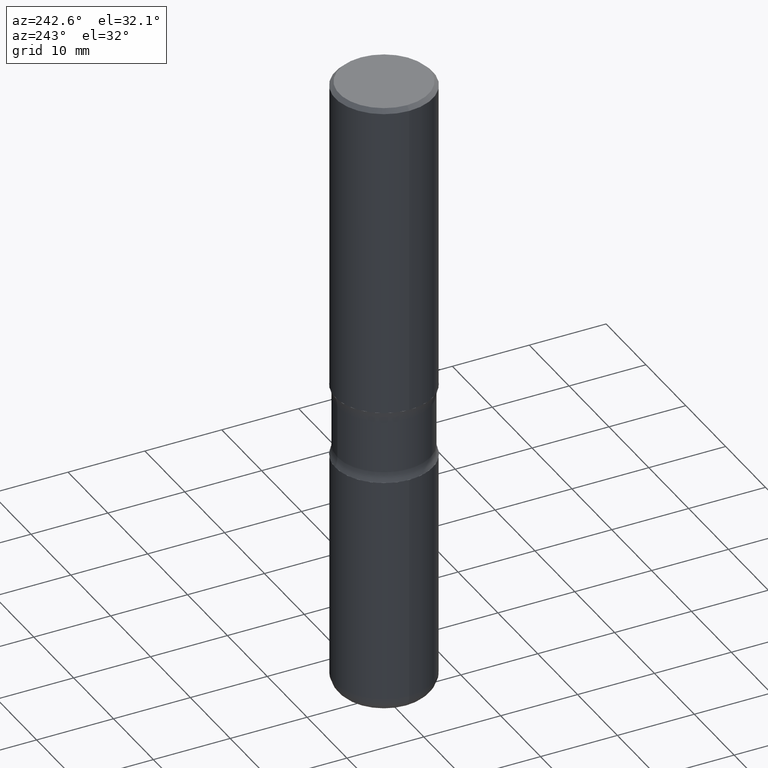
[diagram: clean part render]
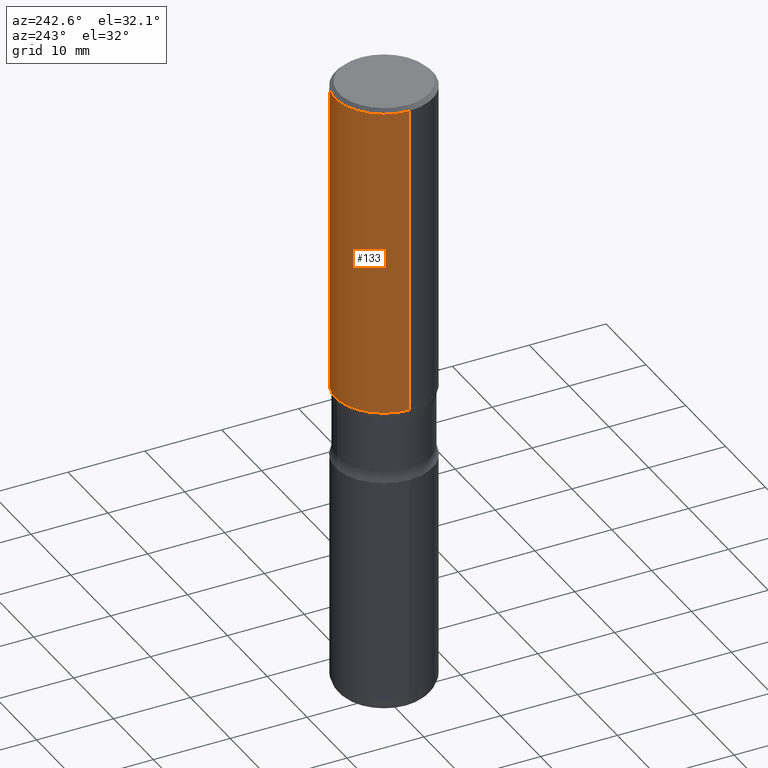
[diagram: same view with one face highlighted and labeled with its STEP entity id]
A machine part, auxiliary view. The second image highlights one B-rep face of the part: STEP entity #133.
In plain terms, the highlighted cylindrical surface (partial cylindrical patch) has radius 6.35 mm, axis along (-0, 0, 1).
Its self-contained STEP definition (entity closure, byte-faithful):
#7 = LINE ( 'NONE', #327, #521 ) ;
#46 = CARTESIAN_POINT ( 'NONE',  ( 0.000000000000000000, 0.000000000000000000, 0.000000000000000000 ) ) ;
#51 = DIRECTION ( 'NONE',  ( 1.000000000000000000, -6.982962677686265922E-15, 4.876176775795935232E-29 ) ) ;
#74 = CARTESIAN_POINT ( 'NONE',  ( 0.2500000000000005551, -7.419397845041682046E-15, -1.624999999999999778 ) ) ;
#86 = CARTESIAN_POINT ( 'NONE',  ( 3.973886810050846409E-29, -5.673657175620110635E-15, -1.624999999999999778 ) ) ;
#119 = AXIS2_PLACEMENT_3D ( 'NONE', #86, #341, #420 ) ;
#121 = EDGE_LOOP ( 'NONE', ( #452, #351, #424, #162 ) ) ;
#133 = ADVANCED_FACE ( 'NONE', ( #183 ), #278, .T. ) ;
#140 = VECTOR ( 'NONE', #407, 39.37007874015748143 ) ;
#162 = ORIENTED_EDGE ( 'NONE', *, *, #238, .F. ) ;
#175 = CARTESIAN_POINT ( 'NONE',  ( 0.2500000000000004996, -1.745740669421570030E-15, 1.219044193948986190E-29 ) ) ;
#183 = FACE_OUTER_BOUND ( 'NONE', #121, .T. ) ;
#237 = DIRECTION ( 'NONE',  ( -2.445468806185136597E-29, 3.491481338843145583E-15, 1.000000000000000000 ) ) ;
#238 = EDGE_CURVE ( 'NONE', #515, #441, #244, .T. ) ;
#244 = LINE ( 'NONE', #175, #140 ) ;
#278 = CYLINDRICAL_SURFACE ( 'NONE', #446, 0.2500000000000004996 ) ;
#288 = DIRECTION ( 'NONE',  ( -2.445468806185136597E-29, 3.491481338843145583E-15, 1.000000000000000000 ) ) ;
#298 = EDGE_CURVE ( 'NONE', #523, #309, #7, .T. ) ;
#304 = EDGE_CURVE ( 'NONE', #441, #309, #465, .T. ) ;
#309 = VERTEX_POINT ( 'NONE', #335 ) ;
#327 = CARTESIAN_POINT ( 'NONE',  ( -0.2500000000000004996, 1.776356839400254015E-15, -1.229733772563728688E-29 ) ) ;
#335 = CARTESIAN_POINT ( 'NONE',  ( -0.2500000000000003331, 1.675911042644705746E-15, -0.02000000000000013572 ) ) ;
#341 = DIRECTION ( 'NONE',  ( -2.445468806185136597E-29, 3.491481338843145583E-15, 1.000000000000000000 ) ) ;
#351 = ORIENTED_EDGE ( 'NONE', *, *, #298, .T. ) ;
#352 = AXIS2_PLACEMENT_3D ( 'NONE', #524, #288, #546 ) ;
#382 = CARTESIAN_POINT ( 'NONE',  ( -0.2500000000000005551, -1.095386561798230783E-15, -1.624999999999999778 ) ) ;
#393 = CIRCLE ( 'NONE', #119, 0.2500000000000005551 ) ;
#407 = DIRECTION ( 'NONE',  ( -2.445468806185136877E-29, 3.491481338843145188E-15, 1.000000000000000000 ) ) ;
#420 = DIRECTION ( 'NONE',  ( 1.000000000000000000, -6.982962677686266711E-15, 0.000000000000000000 ) ) ;
#424 = ORIENTED_EDGE ( 'NONE', *, *, #304, .F. ) ;
#441 = VERTEX_POINT ( 'NONE', #550 ) ;
#446 = AXIS2_PLACEMENT_3D ( 'NONE', #46, #237, #51 ) ;
#452 = ORIENTED_EDGE ( 'NONE', *, *, #549, .T. ) ;
#465 = CIRCLE ( 'NONE', #352, 0.2500000000000003331 ) ;
#491 = DIRECTION ( 'NONE',  ( -2.445468806185136877E-29, 3.491481338843145188E-15, 1.000000000000000000 ) ) ;
#515 = VERTEX_POINT ( 'NONE', #74 ) ;
#521 = VECTOR ( 'NONE', #491, 39.37007874015748143 ) ;
#523 = VERTEX_POINT ( 'NONE', #382 ) ;
#524 = CARTESIAN_POINT ( 'NONE',  ( 4.890937612370306439E-31, -6.982962677686338448E-17, -0.02000000000000013572 ) ) ;
#546 = DIRECTION ( 'NONE',  ( 1.000000000000000000, -6.982962677686266711E-15, 0.000000000000000000 ) ) ;
#549 = EDGE_CURVE ( 'NONE', #515, #523, #393, .T. ) ;
#550 = CARTESIAN_POINT ( 'NONE',  ( 0.2500000000000003331, -1.784954126219748555E-15, -0.02000000000000013572 ) ) ;